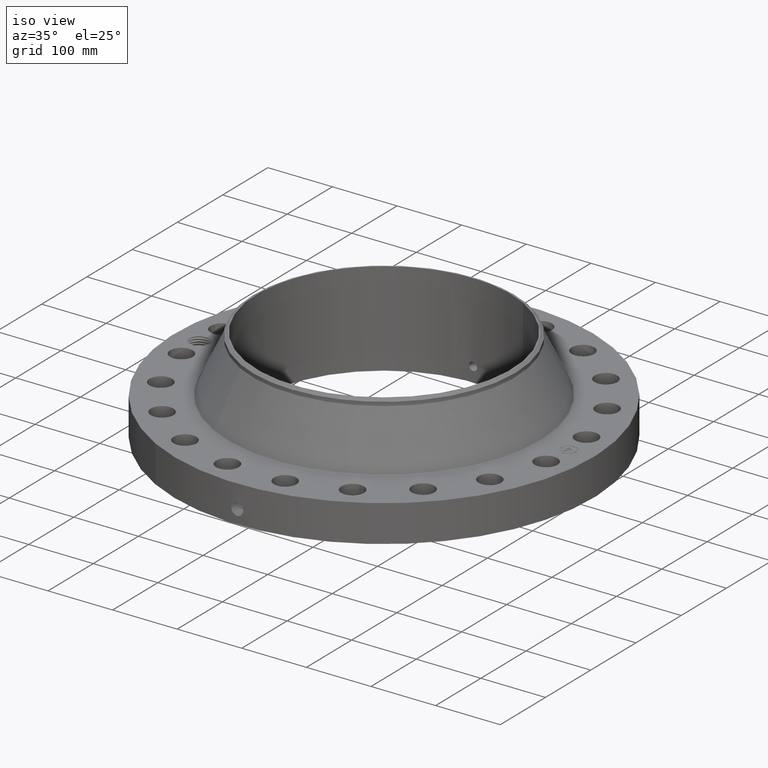
[diagram: clean part render]
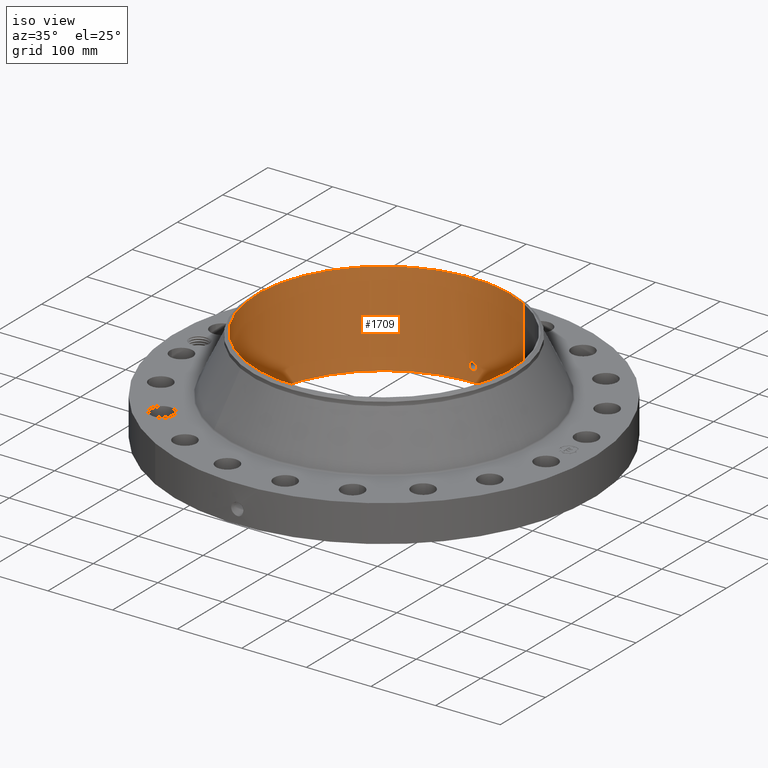
[diagram: tour spotlight — one face highlighted and labeled with its STEP entity id]
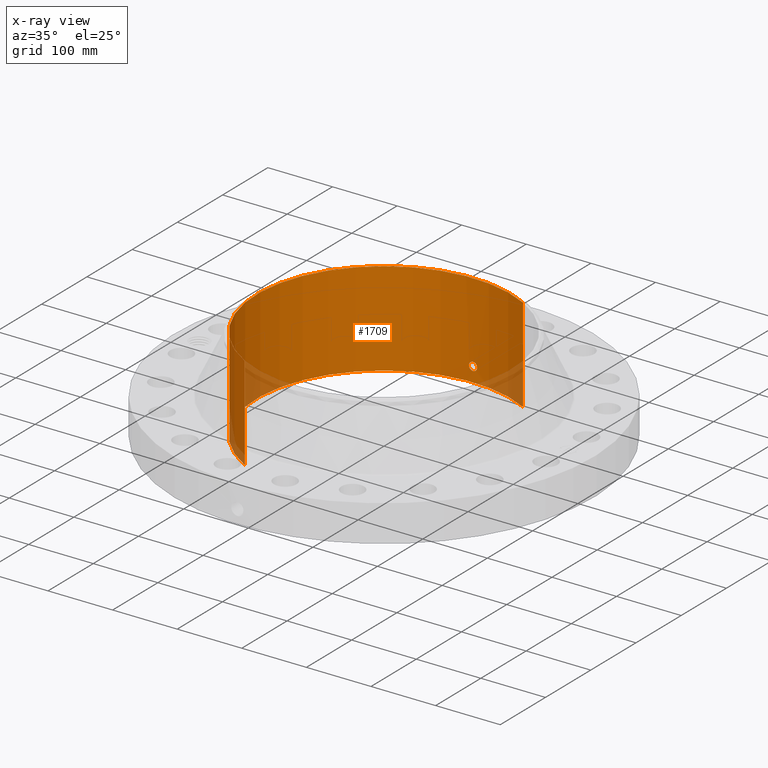
[diagram: x-ray of the same camera — body ghosted, this tour face saturated]
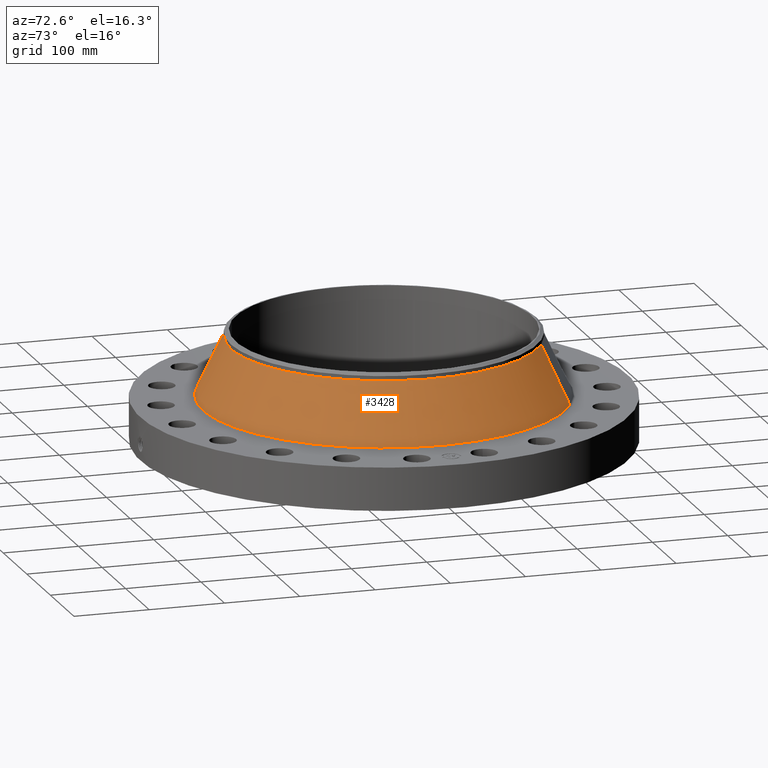
[diagram: tour spotlight — one face highlighted and labeled with its STEP entity id]
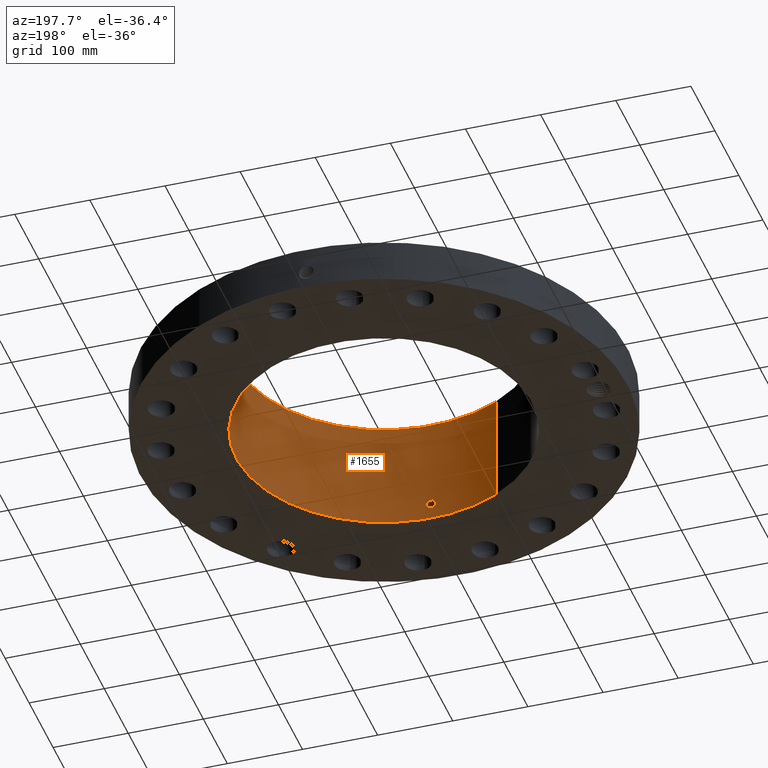
[diagram: tour spotlight — one face highlighted and labeled with its STEP entity id]
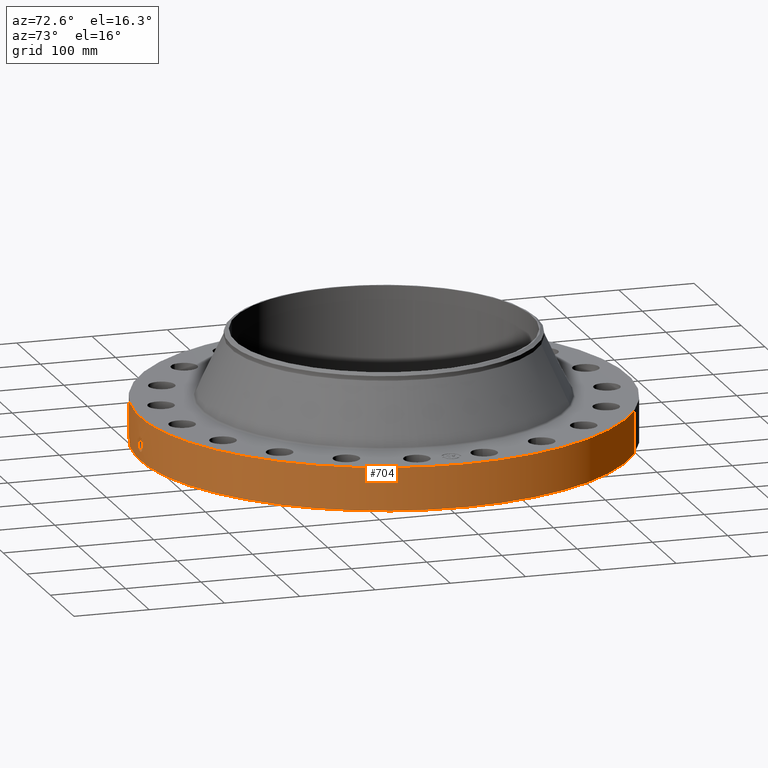
[diagram: tour spotlight — one face highlighted and labeled with its STEP entity id]
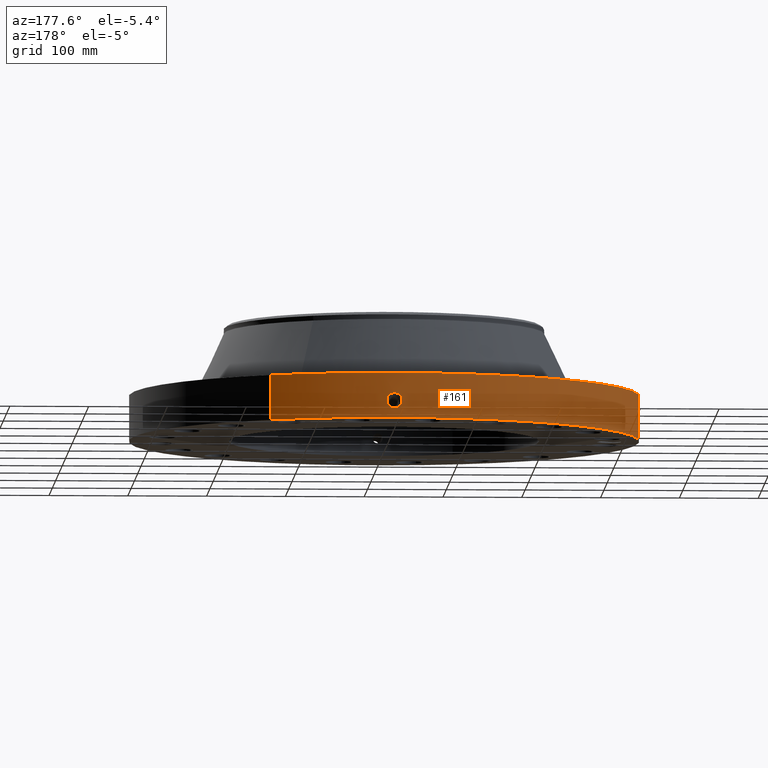
[diagram: tour spotlight — one face highlighted and labeled with its STEP entity id]
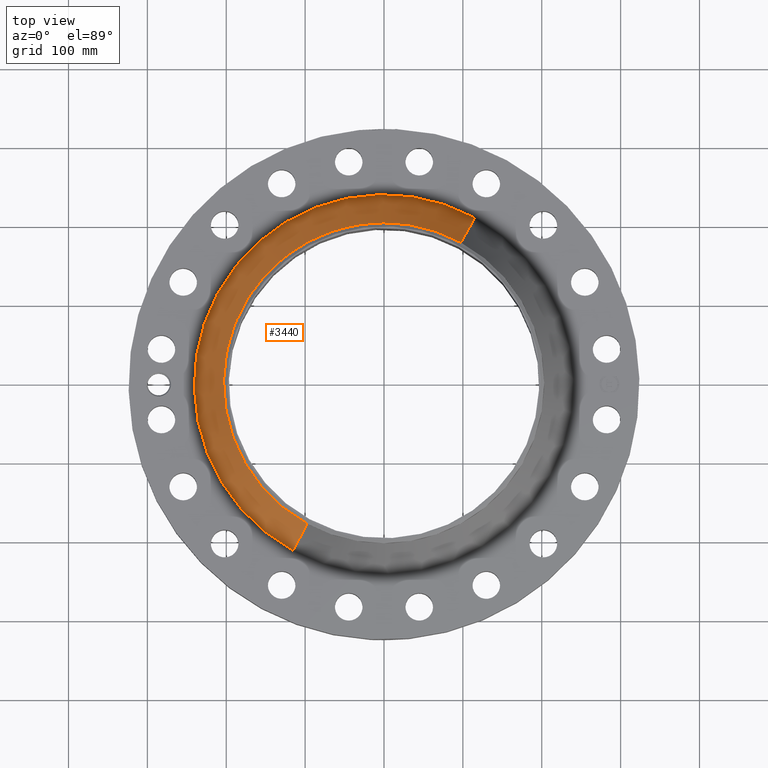
[diagram: tour spotlight — one face highlighted and labeled with its STEP entity id]
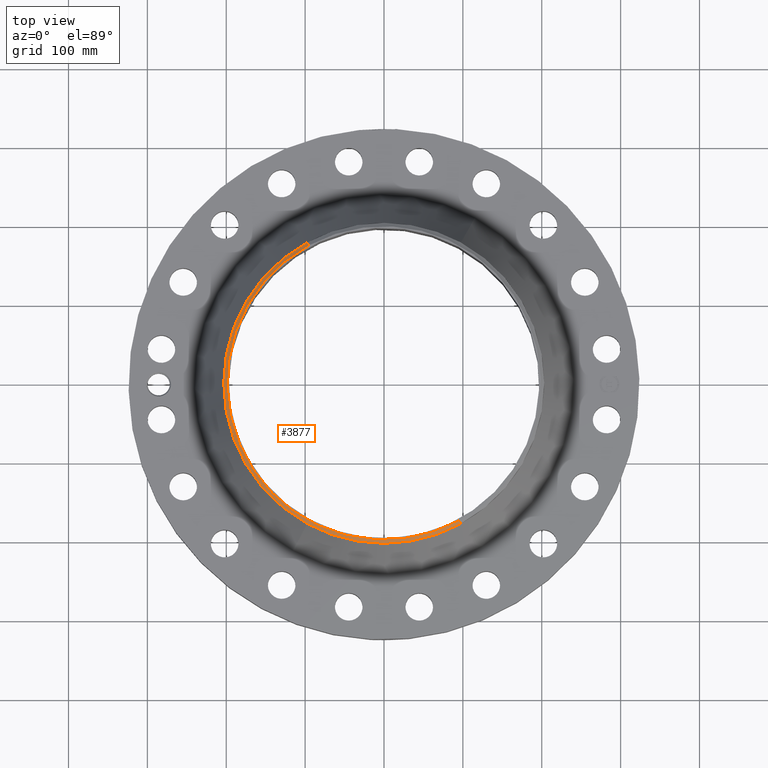
[diagram: tour spotlight — one face highlighted and labeled with its STEP entity id]
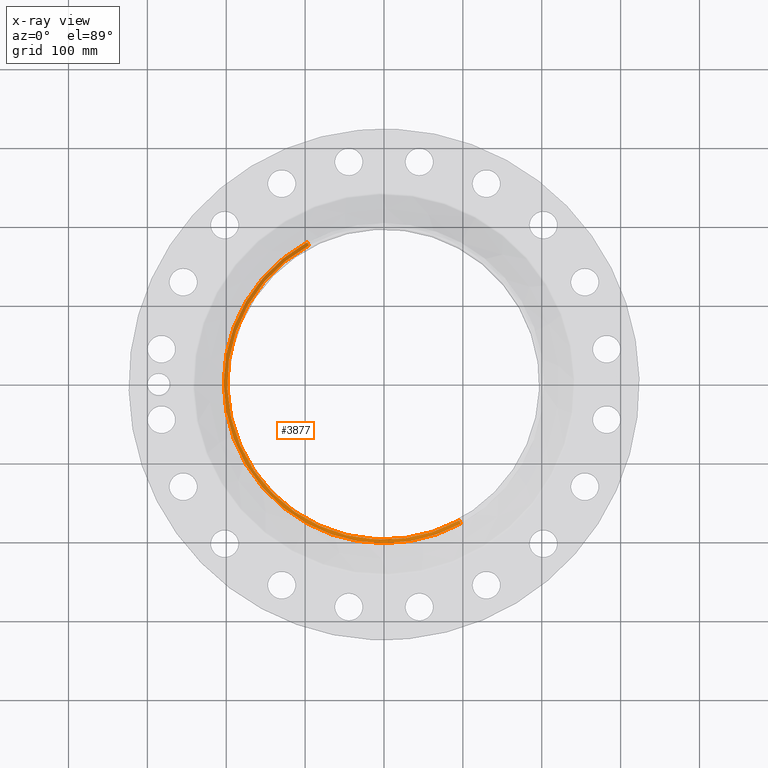
[diagram: x-ray of the same camera — body ghosted, this tour face saturated]
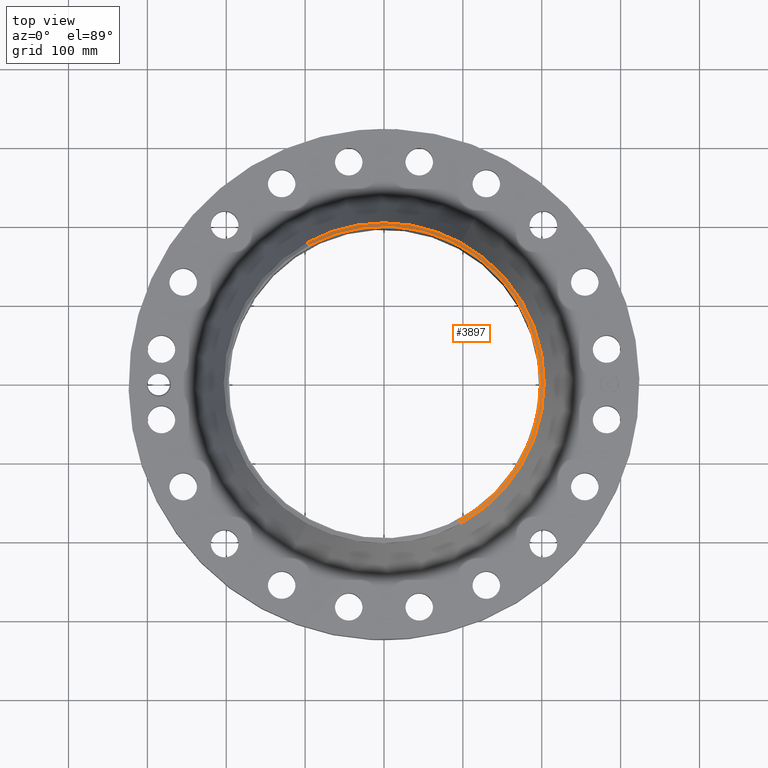
[diagram: tour spotlight — one face highlighted and labeled with its STEP entity id]
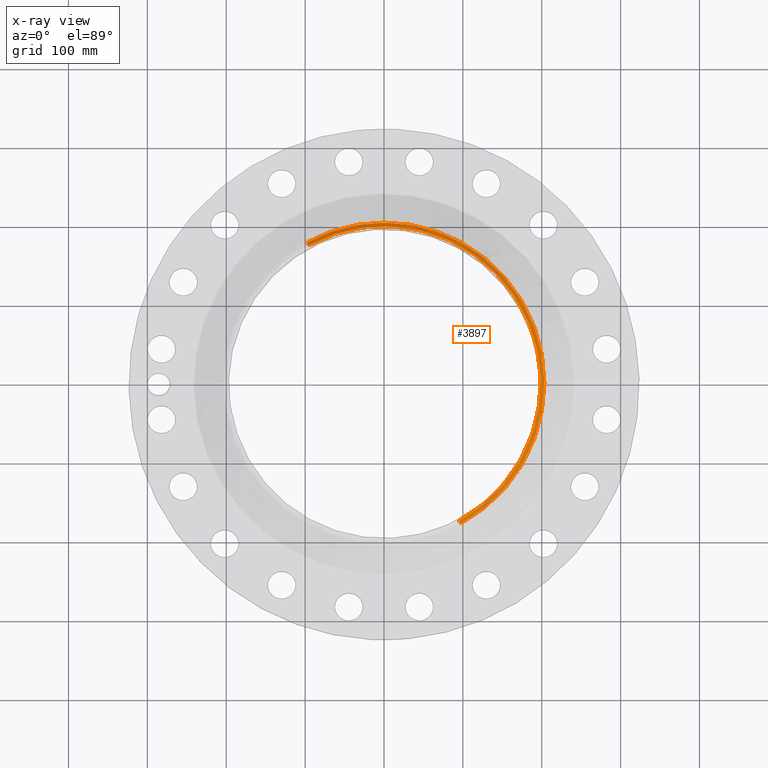
[diagram: x-ray of the same camera — body ghosted, this tour face saturated]
A machine part: a face-by-face anatomy tour. The part has 796 B-rep faces; the first image is the clean iso view, then the 8 largest visible faces are spotlighted one at a time (largest first), each with its STEP entity span.

Face 1 — iso view, entity #1709. An x-ray twin of the same camera follows (body ghosted, this face saturated) — the face is partly hidden behind the body. In plain terms, the highlighted cylindrical surface (partial cylindrical patch) has radius 196.85 mm, axis along (0, 0, -1).
Definition (entity closure, byte-faithful):
#256=AXIS2_PLACEMENT_3D('Circle Axis2P3D',#254,#255,$) ;
#1586=AXIS2_PLACEMENT_3D('Cylinder Axis2P3D',#1583,#1584,#1585) ;
#1658=AXIS2_PLACEMENT_3D('Circle Axis2P3D',#1656,#1657,$) ;
#249=CARTESIAN_POINT('Vertex',(3.7155479242,6.80126485468,0.0600000000002)) ;
#251=CARTESIAN_POINT('Vertex',(-3.7155479242,-6.80126485468,0.0600000000002)) ;
#254=CARTESIAN_POINT('Axis2P3D Location',(0.,0.,0.0600000000002)) ;
#1583=CARTESIAN_POINT('Axis2P3D Location',(0.,0.,2.93500000001)) ;
#1592=CARTESIAN_POINT('Vertex',(3.7155479242,6.80126485468,5.81000000002)) ;
#1594=CARTESIAN_POINT('Vertex',(-3.7155479242,-6.80126485468,5.81000000002)) ;
#1597=CARTESIAN_POINT('Line Origine',(3.7155479242,6.80126485468,2.93500000001)) ;
#1602=CARTESIAN_POINT('Line Origine',(-3.7155479242,-6.80126485468,2.93500000001)) ;
#1656=CARTESIAN_POINT('Axis2P3D Location',(0.,0.,5.81000000002)) ;
#1668=CARTESIAN_POINT('Control Point',(0.219395640473,7.7468939294,1.05985638466)) ;
#1669=CARTESIAN_POINT('Control Point',(0.194443307729,7.74760059108,1.10553132337)) ;
#1670=CARTESIAN_POINT('Control Point',(0.157606486332,7.74854328375,1.14470999864)) ;
#1671=CARTESIAN_POINT('Control Point',(0.111111144198,7.74946004048,1.17324177468)) ;
#1672=CARTESIAN_POINT('Control Point',(0.0336773044383,7.75018946273,1.19588200946)) ;
#1673=CARTESIAN_POINT('Control Point',(-0.0446667861862,7.74993744558,1.18805696026)) ;
#1674=CARTESIAN_POINT('Control Point',(-0.0702953327521,7.74974179968,1.18204511052)) ;
#1675=CARTESIAN_POINT('Control Point',(-0.143949962811,7.74887718675,1.15421582951)) ;
#1676=CARTESIAN_POINT('Control Point',(-0.203236546486,7.7474657996,1.0995061559)) ;
#1677=CARTESIAN_POINT('Control Point',(-0.23220351652,7.74653996778,1.05327055992)) ;
#1678=CARTESIAN_POINT('Control Point',(-0.255839464152,7.7457787164,0.975122432698)) ;
#1679=CARTESIAN_POINT('Control Point',(-0.248284634884,7.74602183676,0.895754343681)) ;
#1680=CARTESIAN_POINT('Control Point',(-0.242050814224,7.74622536427,0.869188883833)) ;
#1681=CARTESIAN_POINT('Control Point',(-0.232316614703,7.7465280014,0.843795300033)) ;
#1682=CARTESIAN_POINT('Control Point',(-0.219395640473,7.7468939294,0.820143615352)) ;
#1683=CARTESIAN_POINT('Vertex',(0.219395640473,7.7468939294,1.05985638466)) ;
#1685=CARTESIAN_POINT('Vertex',(-0.219395640473,7.7468939294,0.820143615352)) ;
#1689=CARTESIAN_POINT('Control Point',(-0.219395640473,7.7468939294,0.820143615352)) ;
#1690=CARTESIAN_POINT('Control Point',(-0.19444330773,7.74760059108,0.774468676637)) ;
#1691=CARTESIAN_POINT('Control Point',(-0.157606486333,7.74854328375,0.735290001369)) ;
#1692=CARTESIAN_POINT('Control Point',(-0.111111144198,7.74946004048,0.706758225326)) ;
#1693=CARTESIAN_POINT('Control Point',(-0.0336773044331,7.75018946273,0.684117990545)) ;
#1694=CARTESIAN_POINT('Control Point',(0.0446667861964,7.74993744558,0.691943039751)) ;
#1695=CARTESIAN_POINT('Control Point',(0.0702953327383,7.74974179968,0.69795488948)) ;
#1696=CARTESIAN_POINT('Control Point',(0.143949962684,7.74887718675,0.725784170446)) ;
#1697=CARTESIAN_POINT('Control Point',(0.203236546291,7.74746579961,0.780493843929)) ;
#1698=CARTESIAN_POINT('Control Point',(0.232203516596,7.74653996778,0.82672944034)) ;
#1699=CARTESIAN_POINT('Control Point',(0.25583946415,7.7457787164,0.904877567467)) ;
#1700=CARTESIAN_POINT('Control Point',(0.248284634878,7.74602183676,0.98424565639)) ;
#1701=CARTESIAN_POINT('Control Point',(0.242050814248,7.74622536427,1.01081111611)) ;
#1702=CARTESIAN_POINT('Control Point',(0.232316614719,7.7465280014,1.03620469995)) ;
#1703=CARTESIAN_POINT('Control Point',(0.219395640473,7.7468939294,1.05985638466)) ;
#255=DIRECTION('Axis2P3D Direction',(0.,0.,-0.0393700787402)) ;
#1584=DIRECTION('Axis2P3D Direction',(0.,0.,-0.0393700787402)) ;
#1585=DIRECTION('Axis2P3D XDirection',(-0.0188750212049,-0.0345504945626,0.)) ;
#1598=DIRECTION('Vector Direction',(0.,0.,-0.0393700787402)) ;
#1603=DIRECTION('Vector Direction',(0.,0.,-0.0393700787402)) ;
#1657=DIRECTION('Axis2P3D Direction',(0.,0.,-0.0393700787402)) ;
#1599=VECTOR('Line Direction',#1598,0.0393700787402) ;
#1604=VECTOR('Line Direction',#1603,0.0393700787402) ;
#1662=ORIENTED_EDGE('',*,*,#1660,.F.) ;
#1663=ORIENTED_EDGE('',*,*,#1606,.T.) ;
#1664=ORIENTED_EDGE('',*,*,#258,.T.) ;
#1665=ORIENTED_EDGE('',*,*,#1601,.F.) ;
#1706=ORIENTED_EDGE('',*,*,#1687,.F.) ;
#1707=ORIENTED_EDGE('',*,*,#1704,.F.) ;
#1708=FACE_BOUND('',#1705,.T.) ;
#1709=ADVANCED_FACE('PartBody',(#1666,#1708),#1587,.F.) ;
#1667=B_SPLINE_CURVE_WITH_KNOTS('',5,(#1668,#1669,#1670,#1671,#1672,#1673,#1674,#1675,#1676,#1677,#1678,#1679,#1680,#1681,#1682),.UNSPECIFIED.,.F.,.U.,(6,3,3,3,6),(0.,9.34864642308,14.022757208,23.3727863649,28.2137613853),.UNSPECIFIED.) ;
#1688=B_SPLINE_CURVE_WITH_KNOTS('',5,(#1689,#1690,#1691,#1692,#1693,#1694,#1695,#1696,#1697,#1698,#1699,#1700,#1701,#1702,#1703),.UNSPECIFIED.,.F.,.U.,(6,3,3,3,6),(0.,9.34864642283,14.0227572088,23.3727863429,28.2137613691),.UNSPECIFIED.) ;
#257=CIRCLE('generated circle',#256,7.75000000003) ;
#1659=CIRCLE('generated circle',#1658,7.75000000003) ;
#1587=CYLINDRICAL_SURFACE('generated cylinder',#1586,7.75000000003) ;
#258=EDGE_CURVE('',#252,#250,#257,.T.) ;
#1601=EDGE_CURVE('',#1593,#250,#1600,.T.) ;
#1606=EDGE_CURVE('',#1595,#252,#1605,.T.) ;
#1660=EDGE_CURVE('',#1595,#1593,#1659,.T.) ;
#1687=EDGE_CURVE('',#1684,#1686,#1667,.T.) ;
#1704=EDGE_CURVE('',#1686,#1684,#1688,.T.) ;
#1661=EDGE_LOOP('',(#1662,#1663,#1664,#1665)) ;
#1705=EDGE_LOOP('',(#1706,#1707)) ;
#1666=FACE_OUTER_BOUND('',#1661,.T.) ;
#1600=LINE('Line',#1597,#1599) ;
#1605=LINE('Line',#1602,#1604) ;
#250=VERTEX_POINT('',#249) ;
#252=VERTEX_POINT('',#251) ;
#1593=VERTEX_POINT('',#1592) ;
#1595=VERTEX_POINT('',#1594) ;
#1684=VERTEX_POINT('',#1683) ;
#1686=VERTEX_POINT('',#1685) ;

Face 2 — auxiliary view, entity #3428. In plain terms, the highlighted conical surface has half-angle 25.588 deg.
Definition (entity closure, byte-faithful):
#2667=AXIS2_PLACEMENT_3D('Circle Axis2P3D',#2665,#2666,$) ;
#3401=AXIS2_PLACEMENT_3D('Cone Axis2P3D',#3398,#3399,#3400) ;
#3412=AXIS2_PLACEMENT_3D('Circle Axis2P3D',#3410,#3411,$) ;
#2662=CARTESIAN_POINT('Vertex',(4.53889157544,8.30838529902,2.3781715998)) ;
#2665=CARTESIAN_POINT('Axis2P3D Location',(0.,0.,2.3781715998)) ;
#2669=CARTESIAN_POINT('Vertex',(-4.53889157544,-8.30838529902,2.3781715998)) ;
#3398=CARTESIAN_POINT('Axis2P3D Location',(0.,0.,5.44236722846)) ;
#3403=CARTESIAN_POINT('Line Origine',(4.18714794214,7.66452289709,3.91026941413)) ;
#3407=CARTESIAN_POINT('Vertex',(3.83540430885,7.02066049515,5.44236722846)) ;
#3410=CARTESIAN_POINT('Axis2P3D Location',(0.,0.,5.44236722846)) ;
#3414=CARTESIAN_POINT('Vertex',(-3.83540430885,-7.02066049515,5.44236722846)) ;
#3417=CARTESIAN_POINT('Line Origine',(-4.18714794214,-7.66452289709,3.91026941413)) ;
#2666=DIRECTION('Axis2P3D Direction',(0.,0.,-0.0393700787402)) ;
#3399=DIRECTION('Axis2P3D Direction',(0.,0.,-0.0393700787402)) ;
#3400=DIRECTION('Axis2P3D XDirection',(-0.0188750212049,-0.0345504945626,0.)) ;
#3404=DIRECTION('Vector Direction',(0.00815218460783,0.0149224738298,-0.0355086575489)) ;
#3411=DIRECTION('Axis2P3D Direction',(0.,0.,-0.0393700787402)) ;
#3418=DIRECTION('Vector Direction',(-0.00815218460783,-0.0149224738298,-0.0355086575489)) ;
#3405=VECTOR('Line Direction',#3404,0.0393700787402) ;
#3419=VECTOR('Line Direction',#3418,0.0393700787402) ;
#3423=ORIENTED_EDGE('',*,*,#2671,.F.) ;
#3424=ORIENTED_EDGE('',*,*,#3409,.T.) ;
#3425=ORIENTED_EDGE('',*,*,#3416,.T.) ;
#3426=ORIENTED_EDGE('',*,*,#3421,.F.) ;
#3428=ADVANCED_FACE('PartBody',(#3427),#3402,.T.) ;
#2668=CIRCLE('generated circle',#2667,9.46735459411) ;
#3413=CIRCLE('generated circle',#3412,8.00000000003) ;
#3402=CONICAL_SURFACE('Cone',#3401,8.00000000003,0.446602028231) ;
#2671=EDGE_CURVE('',#2663,#2670,#2668,.T.) ;
#3409=EDGE_CURVE('',#2663,#3408,#3406,.F.) ;
#3416=EDGE_CURVE('',#3408,#3415,#3413,.T.) ;
#3421=EDGE_CURVE('',#2670,#3415,#3420,.F.) ;
#3422=EDGE_LOOP('',(#3423,#3424,#3425,#3426)) ;
#3427=FACE_OUTER_BOUND('',#3422,.T.) ;
#3406=LINE('Line',#3403,#3405) ;
#3420=LINE('Line',#3417,#3419) ;
#2663=VERTEX_POINT('',#2662) ;
#2670=VERTEX_POINT('',#2669) ;
#3408=VERTEX_POINT('',#3407) ;
#3415=VERTEX_POINT('',#3414) ;

Face 3 — auxiliary view, entity #1655. In plain terms, the highlighted cylindrical surface (partial cylindrical patch) has radius 196.85 mm, axis along (0, 0, -1).
Definition (entity closure, byte-faithful):
#247=AXIS2_PLACEMENT_3D('Circle Axis2P3D',#245,#246,$) ;
#1586=AXIS2_PLACEMENT_3D('Cylinder Axis2P3D',#1583,#1584,#1585) ;
#1590=AXIS2_PLACEMENT_3D('Circle Axis2P3D',#1588,#1589,$) ;
#245=CARTESIAN_POINT('Axis2P3D Location',(0.,0.,0.0600000000002)) ;
#249=CARTESIAN_POINT('Vertex',(3.7155479242,6.80126485468,0.0600000000002)) ;
#251=CARTESIAN_POINT('Vertex',(-3.7155479242,-6.80126485468,0.0600000000002)) ;
#1583=CARTESIAN_POINT('Axis2P3D Location',(0.,0.,2.93500000001)) ;
#1588=CARTESIAN_POINT('Axis2P3D Location',(0.,0.,5.81000000002)) ;
#1592=CARTESIAN_POINT('Vertex',(3.7155479242,6.80126485468,5.81000000002)) ;
#1594=CARTESIAN_POINT('Vertex',(-3.7155479242,-6.80126485468,5.81000000002)) ;
#1597=CARTESIAN_POINT('Line Origine',(3.7155479242,6.80126485468,2.93500000001)) ;
#1602=CARTESIAN_POINT('Line Origine',(-3.7155479242,-6.80126485468,2.93500000001)) ;
#1614=CARTESIAN_POINT('Control Point',(0.219395640473,-7.7468939294,0.820143615352)) ;
#1615=CARTESIAN_POINT('Control Point',(0.194443307725,-7.74760059108,0.774468676627)) ;
#1616=CARTESIAN_POINT('Control Point',(0.157606486318,-7.74854328375,0.735290001353)) ;
#1617=CARTESIAN_POINT('Control Point',(0.111111144336,-7.74946004048,0.706758225388)) ;
#1618=CARTESIAN_POINT('Control Point',(0.0336773045755,-7.75018946273,0.684117990562)) ;
#1619=CARTESIAN_POINT('Control Point',(-0.044666786065,-7.74993744558,0.691943039728)) ;
#1620=CARTESIAN_POINT('Control Point',(-0.0702953326227,-7.74974179968,0.697954889447)) ;
#1621=CARTESIAN_POINT('Control Point',(-0.143949962649,-7.74887718675,0.725784170402)) ;
#1622=CARTESIAN_POINT('Control Point',(-0.203236546324,-7.74746579961,0.780493843931)) ;
#1623=CARTESIAN_POINT('Control Point',(-0.232203516494,-7.74653996778,0.826729440077)) ;
#1624=CARTESIAN_POINT('Control Point',(-0.255839464142,-7.7457787164,0.904877567273)) ;
#1625=CARTESIAN_POINT('Control Point',(-0.248284634899,-7.74602183676,0.984245656284)) ;
#1626=CARTESIAN_POINT('Control Point',(-0.242050814254,-7.74622536426,1.0108111161)) ;
#1627=CARTESIAN_POINT('Control Point',(-0.232316614724,-7.7465280014,1.03620469994)) ;
#1628=CARTESIAN_POINT('Control Point',(-0.219395640473,-7.7468939294,1.05985638466)) ;
#1629=CARTESIAN_POINT('Vertex',(0.219395640473,-7.7468939294,0.820143615352)) ;
#1631=CARTESIAN_POINT('Vertex',(-0.219395640473,-7.7468939294,1.05985638466)) ;
#1635=CARTESIAN_POINT('Control Point',(-0.219395640473,-7.7468939294,1.05985638466)) ;
#1636=CARTESIAN_POINT('Control Point',(-0.194443307736,-7.74760059108,1.10553132336)) ;
#1637=CARTESIAN_POINT('Control Point',(-0.157606486352,-7.74854328375,1.14470999862)) ;
#1638=CARTESIAN_POINT('Control Point',(-0.111111144292,-7.74946004048,1.17324177463)) ;
#1639=CARTESIAN_POINT('Control Point',(-0.0336773045585,-7.75018946273,1.19588200944)) ;
#1640=CARTESIAN_POINT('Control Point',(0.0446667860549,-7.74993744558,1.18805696028)) ;
#1641=CARTESIAN_POINT('Control Point',(0.0702953326259,-7.74974179968,1.18204511056)) ;
#1642=CARTESIAN_POINT('Control Point',(0.143949962635,-7.74887718675,1.15421582961)) ;
#1643=CARTESIAN_POINT('Control Point',(0.203236546301,-7.74746579961,1.0995061561)) ;
#1644=CARTESIAN_POINT('Control Point',(0.232203516501,-7.74653996778,1.05327055991)) ;
#1645=CARTESIAN_POINT('Control Point',(0.25583946414,-7.7457787164,0.975122432723)) ;
#1646=CARTESIAN_POINT('Control Point',(0.248284634899,-7.74602183676,0.895754343726)) ;
#1647=CARTESIAN_POINT('Control Point',(0.242050814255,-7.74622536426,0.869188883913)) ;
#1648=CARTESIAN_POINT('Control Point',(0.232316614724,-7.7465280014,0.84379530007)) ;
#1649=CARTESIAN_POINT('Control Point',(0.219395640473,-7.7468939294,0.820143615352)) ;
#246=DIRECTION('Axis2P3D Direction',(0.,0.,-0.0393700787402)) ;
#1584=DIRECTION('Axis2P3D Direction',(0.,0.,-0.0393700787402)) ;
#1585=DIRECTION('Axis2P3D XDirection',(-0.0188750212049,-0.0345504945626,0.)) ;
#1589=DIRECTION('Axis2P3D Direction',(0.,0.,-0.0393700787402)) ;
#1598=DIRECTION('Vector Direction',(0.,0.,-0.0393700787402)) ;
#1603=DIRECTION('Vector Direction',(0.,0.,-0.0393700787402)) ;
#1599=VECTOR('Line Direction',#1598,0.0393700787402) ;
#1604=VECTOR('Line Direction',#1603,0.0393700787402) ;
#1608=ORIENTED_EDGE('',*,*,#1596,.F.) ;
#1609=ORIENTED_EDGE('',*,*,#1601,.T.) ;
#1610=ORIENTED_EDGE('',*,*,#253,.T.) ;
#1611=ORIENTED_EDGE('',*,*,#1606,.F.) ;
#1652=ORIENTED_EDGE('',*,*,#1633,.F.) ;
#1653=ORIENTED_EDGE('',*,*,#1650,.F.) ;
#1654=FACE_BOUND('',#1651,.T.) ;
#1655=ADVANCED_FACE('PartBody',(#1612,#1654),#1587,.F.) ;
#1613=B_SPLINE_CURVE_WITH_KNOTS('',5,(#1614,#1615,#1616,#1617,#1618,#1619,#1620,#1621,#1622,#1623,#1624,#1625,#1626,#1627,#1628),.UNSPECIFIED.,.F.,.U.,(6,3,3,3,6),(0.,9.34864642473,14.0227572102,23.3727863575,28.2137613855),.UNSPECIFIED.) ;
#1634=B_SPLINE_CURVE_WITH_KNOTS('',5,(#1635,#1636,#1637,#1638,#1639,#1640,#1641,#1642,#1643,#1644,#1645,#1646,#1647,#1648,#1649),.UNSPECIFIED.,.F.,.U.,(6,3,3,3,6),(0.,9.34864642044,14.0227572053,23.3727863501,28.2137613781),.UNSPECIFIED.) ;
#248=CIRCLE('generated circle',#247,7.75000000003) ;
#1591=CIRCLE('generated circle',#1590,7.75000000003) ;
#1587=CYLINDRICAL_SURFACE('generated cylinder',#1586,7.75000000003) ;
#253=EDGE_CURVE('',#250,#252,#248,.T.) ;
#1596=EDGE_CURVE('',#1593,#1595,#1591,.T.) ;
#1601=EDGE_CURVE('',#1593,#250,#1600,.T.) ;
#1606=EDGE_CURVE('',#1595,#252,#1605,.T.) ;
#1633=EDGE_CURVE('',#1630,#1632,#1613,.T.) ;
#1650=EDGE_CURVE('',#1632,#1630,#1634,.T.) ;
#1607=EDGE_LOOP('',(#1608,#1609,#1610,#1611)) ;
#1651=EDGE_LOOP('',(#1652,#1653)) ;
#1612=FACE_OUTER_BOUND('',#1607,.T.) ;
#1600=LINE('Line',#1597,#1599) ;
#1605=LINE('Line',#1602,#1604) ;
#250=VERTEX_POINT('',#249) ;
#252=VERTEX_POINT('',#251) ;
#1593=VERTEX_POINT('',#1592) ;
#1595=VERTEX_POINT('',#1594) ;
#1630=VERTEX_POINT('',#1629) ;
#1632=VERTEX_POINT('',#1631) ;

Face 4 — auxiliary view, entity #704. In plain terms, the highlighted cylindrical surface (partial cylindrical patch) has radius 323.85 mm, axis along (0, 0, -1).
Definition (entity closure, byte-faithful):
#38=AXIS2_PLACEMENT_3D('Cylinder Axis2P3D',#35,#36,#37) ;
#169=AXIS2_PLACEMENT_3D('Circle Axis2P3D',#167,#168,$) ;
#608=AXIS2_PLACEMENT_3D('Circle Axis2P3D',#606,#607,$) ;
#35=CARTESIAN_POINT('Axis2P3D Location',(0.,0.,2.93500000001)) ;
#44=CARTESIAN_POINT('Vertex',(-6.11267561723,-11.1891776641,0.0600000000002)) ;
#46=CARTESIAN_POINT('Vertex',(6.11267561723,11.1891776641,0.0600000000002)) ;
#49=CARTESIAN_POINT('Line Origine',(-6.11267561723,-11.1891776641,1.185)) ;
#53=CARTESIAN_POINT('Vertex',(-6.11267561723,-11.1891776641,2.31000000001)) ;
#60=CARTESIAN_POINT('Vertex',(6.11267561723,11.1891776641,2.31000000001)) ;
#63=CARTESIAN_POINT('Line Origine',(6.11267561723,11.1891776641,1.185)) ;
#167=CARTESIAN_POINT('Axis2P3D Location',(0.,0.,0.0600000000002)) ;
#606=CARTESIAN_POINT('Axis2P3D Location',(0.,0.,2.31000000001)) ;
#618=CARTESIAN_POINT('Control Point',(0.00071622106981,-12.7499999799,1.29411846088)) ;
#619=CARTESIAN_POINT('Control Point',(0.0192056909227,-12.7499989413,1.2940811042)) ;
#620=CARTESIAN_POINT('Control Point',(0.0376918862487,-12.749957358,1.29259135831)) ;
#621=CARTESIAN_POINT('Control Point',(0.0559484449187,-12.7498772454,1.2896676695)) ;
#622=CARTESIAN_POINT('Vertex',(0.000715799889839,-12.74999998,1.29411851024)) ;
#624=CARTESIAN_POINT('Vertex',(0.0559392979336,-12.7498775403,1.28966915328)) ;
#628=CARTESIAN_POINT('Control Point',(0.055939200232,-12.749877286,1.28966859718)) ;
#629=CARTESIAN_POINT('Control Point',(0.0961344830544,-12.749700932,1.28514555478)) ;
#630=CARTESIAN_POINT('Control Point',(0.135662252488,-12.7493301535,1.27330266976)) ;
#631=CARTESIAN_POINT('Control Point',(0.172040385174,-12.7488392455,1.25494868271)) ;
#632=CARTESIAN_POINT('Vertex',(0.172040385174,-12.7488392455,1.25494868271)) ;
#636=CARTESIAN_POINT('Control Point',(0.030810823393,-12.7499627723,0.531174008101)) ;
#637=CARTESIAN_POINT('Control Point',(0.0999546104405,-12.7497956834,0.539935338981)) ;
#638=CARTESIAN_POINT('Control Point',(0.166759413653,-12.7491655306,0.564146634122)) ;
#639=CARTESIAN_POINT('Control Point',(0.226389957238,-12.7481446874,0.60297314641)) ;
#640=CARTESIAN_POINT('Control Point',(0.298759222736,-12.7465677593,0.677010268017)) ;
#641=CARTESIAN_POINT('Control Point',(0.343480925506,-12.7453828601,0.76721571243)) ;
#642=CARTESIAN_POINT('Control Point',(0.354926209673,-12.745063309,0.797930279853)) ;
#643=CARTESIAN_POINT('Control Point',(0.373429793559,-12.7445343214,0.869245218248)) ;
#644=CARTESIAN_POINT('Control Point',(0.375104751114,-12.7444792671,0.942596970011)) ;
#645=CARTESIAN_POINT('Control Point',(0.370729704788,-12.7446111718,0.983234573066)) ;
#646=CARTESIAN_POINT('Control Point',(0.348316563934,-12.745269017,1.07561109916)) ;
#647=CARTESIAN_POINT('Control Point',(0.299005494504,-12.7465456064,1.15696170481)) ;
#648=CARTESIAN_POINT('Control Point',(0.262643848576,-12.7473952472,1.19786903557)) ;
#649=CARTESIAN_POINT('Control Point',(0.219548985996,-12.7481981363,1.23097900005)) ;
#650=CARTESIAN_POINT('Control Point',(0.172040385174,-12.7488392455,1.25494868271)) ;
#651=CARTESIAN_POINT('Vertex',(0.030810823393,-12.7499627723,0.531174008101)) ;
#655=CARTESIAN_POINT('Control Point',(0.030810823393,-12.7499627723,0.531174008101)) ;
#656=CARTESIAN_POINT('Control Point',(0.0205353999324,-12.7499876033,0.530872367684)) ;
#657=CARTESIAN_POINT('Control Point',(0.0102531277833,-12.7500000022,0.530939425497)) ;
#658=CARTESIAN_POINT('Control Point',(-2.72878352125E-006,-12.7500000001,0.531374667805)) ;
#659=CARTESIAN_POINT('Vertex',(-2.72878354373E-006,-12.7500000001,0.531374667805)) ;
#663=CARTESIAN_POINT('Control Point',(-0.192797685506,-12.7485422325,0.587096993604)) ;
#664=CARTESIAN_POINT('Control Point',(-0.149071702676,-12.7492035056,0.561854438156)) ;
#665=CARTESIAN_POINT('Control Point',(-0.101128961582,-12.7497293521,0.54371522409)) ;
#666=CARTESIAN_POINT('Control Point',(-0.0508105141229,-12.7499999892,0.533530865731)) ;
#667=CARTESIAN_POINT('Control Point',(-2.7287835439E-006,-12.7500000001,0.531374667805)) ;
#668=CARTESIAN_POINT('Vertex',(-0.192797685506,-12.7485422325,0.587096993604)) ;
#672=CARTESIAN_POINT('Control Point',(-0.192797685506,-12.7485422325,0.587096993604)) ;
#673=CARTESIAN_POINT('Control Point',(-0.249749528858,-12.7476809432,0.619974701089)) ;
#674=CARTESIAN_POINT('Control Point',(-0.300014616675,-12.7466026779,0.664147622473)) ;
#675=CARTESIAN_POINT('Control Point',(-0.340461272046,-12.7455024632,0.718136963409)) ;
#676=CARTESIAN_POINT('Control Point',(-0.385069983964,-12.7441957942,0.816179520925)) ;
#677=CARTESIAN_POINT('Control Point',(-0.393917718123,-12.7439118253,0.921478504901)) ;
#678=CARTESIAN_POINT('Control Point',(-0.391894356733,-12.743976098,0.961571301736)) ;
#679=CARTESIAN_POINT('Control Point',(-0.377905154886,-12.7444129307,1.03639829568)) ;
#680=CARTESIAN_POINT('Control Point',(-0.345953377831,-12.7453207298,1.10477756521)) ;
#681=CARTESIAN_POINT('Control Point',(-0.326955705254,-12.7458335864,1.13519565167)) ;
#682=CARTESIAN_POINT('Control Point',(-0.265053361042,-12.7473627065,1.212105368)) ;
#683=CARTESIAN_POINT('Control Point',(-0.181582136228,-12.748888363,1.26540228338)) ;
#684=CARTESIAN_POINT('Control Point',(-0.122355690613,-12.749638806,1.28761817336)) ;
#685=CARTESIAN_POINT('Control Point',(-0.0606924292259,-12.7500001232,1.29712989006)) ;
#686=CARTESIAN_POINT('Control Point',(2.58579355355E-005,-12.75,1.29415298431)) ;
#687=CARTESIAN_POINT('Vertex',(2.58579355444E-005,-12.75,1.29415298431)) ;
#691=CARTESIAN_POINT('Control Point',(0.000715799880079,-12.74999998,1.29411851023)) ;
#692=CARTESIAN_POINT('Control Point',(0.000370853334379,-12.7499999993,1.29413606983)) ;
#693=CARTESIAN_POINT('Control Point',(2.58579407768E-005,-12.75,1.2941529843)) ;
#36=DIRECTION('Axis2P3D Direction',(0.,0.,-0.0393700787402)) ;
#37=DIRECTION('Axis2P3D XDirection',(0.0188750212049,0.0345504945626,0.)) ;
#50=DIRECTION('Vector Direction',(0.,0.,-0.0393700787402)) ;
#64=DIRECTION('Vector Direction',(0.,0.,-0.0393700787402)) ;
#168=DIRECTION('Axis2P3D Direction',(0.,0.,-0.0393700787402)) ;
#607=DIRECTION('Axis2P3D Direction',(0.,0.,-0.0393700787402)) ;
#51=VECTOR('Line Direction',#50,0.0393700787402) ;
#65=VECTOR('Line Direction',#64,0.0393700787402) ;
#612=ORIENTED_EDGE('',*,*,#171,.F.) ;
#613=ORIENTED_EDGE('',*,*,#67,.T.) ;
#614=ORIENTED_EDGE('',*,*,#610,.T.) ;
#615=ORIENTED_EDGE('',*,*,#55,.F.) ;
#696=ORIENTED_EDGE('',*,*,#626,.T.) ;
#697=ORIENTED_EDGE('',*,*,#634,.T.) ;
#698=ORIENTED_EDGE('',*,*,#653,.F.) ;
#699=ORIENTED_EDGE('',*,*,#661,.T.) ;
#700=ORIENTED_EDGE('',*,*,#670,.F.) ;
#701=ORIENTED_EDGE('',*,*,#689,.T.) ;
#702=ORIENTED_EDGE('',*,*,#694,.F.) ;
#703=FACE_BOUND('',#695,.T.) ;
#704=ADVANCED_FACE('PartBody',(#616,#703),#39,.T.) ;
#617=B_SPLINE_CURVE_WITH_KNOTS('',3,(#618,#619,#620,#621),.UNSPECIFIED.,.F.,.U.,(4,4),(34.6164487276,36.6676805584),.UNSPECIFIED.) ;
#627=B_SPLINE_CURVE_WITH_KNOTS('',3,(#628,#629,#630,#631),.UNSPECIFIED.,.F.,.U.,(4,4),(0.,4.54498819023),.UNSPECIFIED.) ;
#635=B_SPLINE_CURVE_WITH_KNOTS('',5,(#636,#637,#638,#639,#640,#641,#642,#643,#644,#645,#646,#647,#648,#649,#650),.UNSPECIFIED.,.F.,.U.,(6,3,3,3,6),(0.,12.1125843953,17.9739548008,25.3575269992,35.2501931075),.UNSPECIFIED.) ;
#654=B_SPLINE_CURVE_WITH_KNOTS('',3,(#655,#656,#657,#658),.UNSPECIFIED.,.F.,.U.,(4,4),(0.,1.07185696031),.UNSPECIFIED.) ;
#662=B_SPLINE_CURVE_WITH_KNOTS('',4,(#663,#664,#665,#666,#667),.UNSPECIFIED.,.F.,.U.,(5,5),(0.,7.0800103633),.UNSPECIFIED.) ;
#671=B_SPLINE_CURVE_WITH_KNOTS('',5,(#672,#673,#674,#675,#676,#677,#678,#679,#680,#681,#682,#683,#684,#685,#686),.UNSPECIFIED.,.F.,.U.,(6,3,3,3,6),(0.,11.5268890419,18.5780212202,24.9818144685,36.3313222898),.UNSPECIFIED.) ;
#690=B_SPLINE_CURVE_WITH_KNOTS('',2,(#691,#692,#693),.UNSPECIFIED.,.F.,.U.,(3,3),(1.02805109055,1.05384581088),.UNSPECIFIED.) ;
#170=CIRCLE('generated circle',#169,12.7500000001) ;
#609=CIRCLE('generated circle',#608,12.7500000001) ;
#39=CYLINDRICAL_SURFACE('generated cylinder',#38,12.7500000001) ;
#55=EDGE_CURVE('',#45,#54,#52,.F.) ;
#67=EDGE_CURVE('',#47,#61,#66,.F.) ;
#171=EDGE_CURVE('',#47,#45,#170,.T.) ;
#610=EDGE_CURVE('',#61,#54,#609,.T.) ;
#626=EDGE_CURVE('',#623,#625,#617,.T.) ;
#634=EDGE_CURVE('',#625,#633,#627,.T.) ;
#653=EDGE_CURVE('',#652,#633,#635,.T.) ;
#661=EDGE_CURVE('',#652,#660,#654,.T.) ;
#670=EDGE_CURVE('',#669,#660,#662,.T.) ;
#689=EDGE_CURVE('',#669,#688,#671,.T.) ;
#694=EDGE_CURVE('',#623,#688,#690,.T.) ;
#611=EDGE_LOOP('',(#612,#613,#614,#615)) ;
#695=EDGE_LOOP('',(#696,#697,#698,#699,#700,#701,#702)) ;
#616=FACE_OUTER_BOUND('',#611,.T.) ;
#52=LINE('Line',#49,#51) ;
#66=LINE('Line',#63,#65) ;
#45=VERTEX_POINT('',#44) ;
#47=VERTEX_POINT('',#46) ;
#54=VERTEX_POINT('',#53) ;
#61=VERTEX_POINT('',#60) ;
#623=VERTEX_POINT('',#622) ;
#625=VERTEX_POINT('',#624) ;
#633=VERTEX_POINT('',#632) ;
#652=VERTEX_POINT('',#651) ;
#660=VERTEX_POINT('',#659) ;
#669=VERTEX_POINT('',#668) ;
#688=VERTEX_POINT('',#687) ;

Face 5 — auxiliary view, entity #161. In plain terms, the highlighted cylindrical surface (partial cylindrical patch) has radius 323.85 mm, axis along (0, 0, -1).
Definition (entity closure, byte-faithful):
#38=AXIS2_PLACEMENT_3D('Cylinder Axis2P3D',#35,#36,#37) ;
#42=AXIS2_PLACEMENT_3D('Circle Axis2P3D',#40,#41,$) ;
#58=AXIS2_PLACEMENT_3D('Circle Axis2P3D',#56,#57,$) ;
#35=CARTESIAN_POINT('Axis2P3D Location',(0.,0.,2.93500000001)) ;
#40=CARTESIAN_POINT('Axis2P3D Location',(0.,0.,0.0600000000002)) ;
#44=CARTESIAN_POINT('Vertex',(-6.11267561723,-11.1891776641,0.0600000000002)) ;
#46=CARTESIAN_POINT('Vertex',(6.11267561723,11.1891776641,0.0600000000002)) ;
#49=CARTESIAN_POINT('Line Origine',(-6.11267561723,-11.1891776641,1.185)) ;
#53=CARTESIAN_POINT('Vertex',(-6.11267561723,-11.1891776641,2.31000000001)) ;
#56=CARTESIAN_POINT('Axis2P3D Location',(0.,0.,2.31000000001)) ;
#60=CARTESIAN_POINT('Vertex',(6.11267561723,11.1891776641,2.31000000001)) ;
#63=CARTESIAN_POINT('Line Origine',(6.11267561723,11.1891776641,1.185)) ;
#75=CARTESIAN_POINT('Control Point',(-0.00071622107048,12.7499999799,1.29411846088)) ;
#76=CARTESIAN_POINT('Control Point',(-0.019205690922,12.7499989413,1.2940811042)) ;
#77=CARTESIAN_POINT('Control Point',(-0.037691886248,12.749957358,1.29259135831)) ;
#78=CARTESIAN_POINT('Control Point',(-0.0559484449188,12.7498772454,1.2896676695)) ;
#79=CARTESIAN_POINT('Vertex',(-0.000715799889837,12.74999998,1.29411851024)) ;
#81=CARTESIAN_POINT('Vertex',(-0.0559392979336,12.7498775403,1.28966915328)) ;
#85=CARTESIAN_POINT('Control Point',(-0.055939200232,12.749877286,1.28966859718)) ;
#86=CARTESIAN_POINT('Control Point',(-0.0961344830574,12.749700932,1.28514555477)) ;
#87=CARTESIAN_POINT('Control Point',(-0.135662252485,12.7493301535,1.27330266976)) ;
#88=CARTESIAN_POINT('Control Point',(-0.172040385174,12.7488392455,1.25494868271)) ;
#89=CARTESIAN_POINT('Vertex',(-0.172040385174,12.7488392455,1.25494868271)) ;
#93=CARTESIAN_POINT('Control Point',(-0.030810823393,12.7499627723,0.531174008101)) ;
#94=CARTESIAN_POINT('Control Point',(-0.0999546104623,12.7497956834,0.539935338984)) ;
#95=CARTESIAN_POINT('Control Point',(-0.166759413695,12.7491655306,0.564146634138)) ;
#96=CARTESIAN_POINT('Control Point',(-0.226389957205,12.7481446874,0.602973146377)) ;
#97=CARTESIAN_POINT('Control Point',(-0.298759222726,12.7465677593,0.677010267995)) ;
#98=CARTESIAN_POINT('Control Point',(-0.343480925505,12.7453828601,0.767215712428)) ;
#99=CARTESIAN_POINT('Control Point',(-0.354926209672,12.745063309,0.797930279851)) ;
#100=CARTESIAN_POINT('Control Point',(-0.373429793539,12.7445343214,0.869245218172)) ;
#101=CARTESIAN_POINT('Control Point',(-0.375104751111,12.7444792671,0.942596969858)) ;
#102=CARTESIAN_POINT('Control Point',(-0.370729704753,12.7446111718,0.983234573209)) ;
#103=CARTESIAN_POINT('Control Point',(-0.348316563883,12.745269017,1.07561109927)) ;
#104=CARTESIAN_POINT('Control Point',(-0.299005494446,12.7465456064,1.1569617049)) ;
#105=CARTESIAN_POINT('Control Point',(-0.262643848666,12.7473952472,1.19786903551)) ;
#106=CARTESIAN_POINT('Control Point',(-0.219548986045,12.7481981363,1.23097900002)) ;
#107=CARTESIAN_POINT('Control Point',(-0.172040385174,12.7488392455,1.25494868271)) ;
#108=CARTESIAN_POINT('Vertex',(-0.030810823393,12.7499627723,0.531174008101)) ;
#112=CARTESIAN_POINT('Control Point',(-0.030810823393,12.7499627723,0.531174008101)) ;
#113=CARTESIAN_POINT('Control Point',(-0.0205353999324,12.7499876033,0.530872367684)) ;
#114=CARTESIAN_POINT('Control Point',(-0.0102531277833,12.7500000022,0.530939425497)) ;
#115=CARTESIAN_POINT('Control Point',(2.72878355366E-006,12.7500000001,0.531374667805)) ;
#116=CARTESIAN_POINT('Vertex',(2.72878354201E-006,12.7500000001,0.531374667805)) ;
#120=CARTESIAN_POINT('Control Point',(0.192797685506,12.7485422325,0.587096993604)) ;
#121=CARTESIAN_POINT('Control Point',(0.149071702676,12.7492035056,0.561854438155)) ;
#122=CARTESIAN_POINT('Control Point',(0.101128961582,12.7497293521,0.54371522409)) ;
#123=CARTESIAN_POINT('Control Point',(0.0508105141235,12.7499999892,0.533530865731)) ;
#124=CARTESIAN_POINT('Control Point',(2.72878353102E-006,12.7500000001,0.531374667805)) ;
#125=CARTESIAN_POINT('Vertex',(0.192797685506,12.7485422325,0.587096993604)) ;
#129=CARTESIAN_POINT('Control Point',(0.192797685506,12.7485422325,0.587096993604)) ;
#130=CARTESIAN_POINT('Control Point',(0.249749528927,12.7476809432,0.619974701129)) ;
#131=CARTESIAN_POINT('Control Point',(0.300014616797,12.7466026779,0.66414762258)) ;
#132=CARTESIAN_POINT('Control Point',(0.340461272016,12.7455024632,0.71813696332)) ;
#133=CARTESIAN_POINT('Control Point',(0.38506998399,12.7441957942,0.816179520942)) ;
#134=CARTESIAN_POINT('Control Point',(0.393917718129,12.7439118253,0.921478505033)) ;
#135=CARTESIAN_POINT('Control Point',(0.391894356738,12.743976098,0.96157130174)) ;
#136=CARTESIAN_POINT('Control Point',(0.377905154876,12.7444129307,1.03639829573)) ;
#137=CARTESIAN_POINT('Control Point',(0.345953377784,12.7453207298,1.1047775653)) ;
#138=CARTESIAN_POINT('Control Point',(0.326955705239,12.7458335864,1.1351956517)) ;
#139=CARTESIAN_POINT('Control Point',(0.265053361002,12.7473627065,1.21210536803)) ;
#140=CARTESIAN_POINT('Control Point',(0.181582136165,12.748888363,1.26540228341)) ;
#141=CARTESIAN_POINT('Control Point',(0.122355690618,12.749638806,1.28761817335)) ;
#142=CARTESIAN_POINT('Control Point',(0.0606924292284,12.7500001232,1.29712989006)) ;
#143=CARTESIAN_POINT('Control Point',(-2.5857935537E-005,12.75,1.29415298431)) ;
#144=CARTESIAN_POINT('Vertex',(-2.5857935546E-005,12.75,1.29415298431)) ;
#148=CARTESIAN_POINT('Control Point',(-0.000715799880076,12.74999998,1.29411851023)) ;
#149=CARTESIAN_POINT('Control Point',(-0.000370853334392,12.7499999993,1.29413606983)) ;
#150=CARTESIAN_POINT('Control Point',(-2.58579408056E-005,12.75,1.2941529843)) ;
#36=DIRECTION('Axis2P3D Direction',(0.,0.,-0.0393700787402)) ;
#37=DIRECTION('Axis2P3D XDirection',(0.0188750212049,0.0345504945626,0.)) ;
#41=DIRECTION('Axis2P3D Direction',(0.,0.,-0.0393700787402)) ;
#50=DIRECTION('Vector Direction',(0.,0.,-0.0393700787402)) ;
#57=DIRECTION('Axis2P3D Direction',(0.,0.,-0.0393700787402)) ;
#64=DIRECTION('Vector Direction',(0.,0.,-0.0393700787402)) ;
#51=VECTOR('Line Direction',#50,0.0393700787402) ;
#65=VECTOR('Line Direction',#64,0.0393700787402) ;
#69=ORIENTED_EDGE('',*,*,#48,.F.) ;
#70=ORIENTED_EDGE('',*,*,#55,.T.) ;
#71=ORIENTED_EDGE('',*,*,#62,.T.) ;
#72=ORIENTED_EDGE('',*,*,#67,.F.) ;
#153=ORIENTED_EDGE('',*,*,#83,.T.) ;
#154=ORIENTED_EDGE('',*,*,#91,.T.) ;
#155=ORIENTED_EDGE('',*,*,#110,.F.) ;
#156=ORIENTED_EDGE('',*,*,#118,.T.) ;
#157=ORIENTED_EDGE('',*,*,#127,.F.) ;
#158=ORIENTED_EDGE('',*,*,#146,.T.) ;
#159=ORIENTED_EDGE('',*,*,#151,.F.) ;
#160=FACE_BOUND('',#152,.T.) ;
#161=ADVANCED_FACE('PartBody',(#73,#160),#39,.T.) ;
#74=B_SPLINE_CURVE_WITH_KNOTS('',3,(#75,#76,#77,#78),.UNSPECIFIED.,.F.,.U.,(4,4),(34.616448747,36.6676805779),.UNSPECIFIED.) ;
#84=B_SPLINE_CURVE_WITH_KNOTS('',3,(#85,#86,#87,#88),.UNSPECIFIED.,.F.,.U.,(4,4),(0.,4.54498819058),.UNSPECIFIED.) ;
#92=B_SPLINE_CURVE_WITH_KNOTS('',5,(#93,#94,#95,#96,#97,#98,#99,#100,#101,#102,#103,#104,#105,#106,#107),.UNSPECIFIED.,.F.,.U.,(6,3,3,3,6),(0.,12.1125843991,17.9739548046,25.3575269895,35.250193108),.UNSPECIFIED.) ;
#111=B_SPLINE_CURVE_WITH_KNOTS('',3,(#112,#113,#114,#115),.UNSPECIFIED.,.F.,.U.,(4,4),(0.,1.07185696031),.UNSPECIFIED.) ;
#119=B_SPLINE_CURVE_WITH_KNOTS('',4,(#120,#121,#122,#123,#124),.UNSPECIFIED.,.F.,.U.,(5,5),(0.,7.08001036339),.UNSPECIFIED.) ;
#128=B_SPLINE_CURVE_WITH_KNOTS('',5,(#129,#130,#131,#132,#133,#134,#135,#136,#137,#138,#139,#140,#141,#142,#143),.UNSPECIFIED.,.F.,.U.,(6,3,3,3,6),(0.,11.5268890559,18.5780212398,24.9818144913,36.3313223131),.UNSPECIFIED.) ;
#147=B_SPLINE_CURVE_WITH_KNOTS('',2,(#148,#149,#150),.UNSPECIFIED.,.F.,.U.,(3,3),(1.02805109055,1.05384581088),.UNSPECIFIED.) ;
#43=CIRCLE('generated circle',#42,12.7500000001) ;
#59=CIRCLE('generated circle',#58,12.7500000001) ;
#39=CYLINDRICAL_SURFACE('generated cylinder',#38,12.7500000001) ;
#48=EDGE_CURVE('',#45,#47,#43,.T.) ;
#55=EDGE_CURVE('',#45,#54,#52,.F.) ;
#62=EDGE_CURVE('',#54,#61,#59,.T.) ;
#67=EDGE_CURVE('',#47,#61,#66,.F.) ;
#83=EDGE_CURVE('',#80,#82,#74,.T.) ;
#91=EDGE_CURVE('',#82,#90,#84,.T.) ;
#110=EDGE_CURVE('',#109,#90,#92,.T.) ;
#118=EDGE_CURVE('',#109,#117,#111,.T.) ;
#127=EDGE_CURVE('',#126,#117,#119,.T.) ;
#146=EDGE_CURVE('',#126,#145,#128,.T.) ;
#151=EDGE_CURVE('',#80,#145,#147,.T.) ;
#68=EDGE_LOOP('',(#69,#70,#71,#72)) ;
#152=EDGE_LOOP('',(#153,#154,#155,#156,#157,#158,#159)) ;
#73=FACE_OUTER_BOUND('',#68,.T.) ;
#52=LINE('Line',#49,#51) ;
#66=LINE('Line',#63,#65) ;
#45=VERTEX_POINT('',#44) ;
#47=VERTEX_POINT('',#46) ;
#54=VERTEX_POINT('',#53) ;
#61=VERTEX_POINT('',#60) ;
#80=VERTEX_POINT('',#79) ;
#82=VERTEX_POINT('',#81) ;
#90=VERTEX_POINT('',#89) ;
#109=VERTEX_POINT('',#108) ;
#117=VERTEX_POINT('',#116) ;
#126=VERTEX_POINT('',#125) ;
#145=VERTEX_POINT('',#144) ;

Face 6 — top view, entity #3440. In plain terms, the highlighted conical surface has half-angle 25.588 deg.
Definition (entity closure, byte-faithful):
#2686=AXIS2_PLACEMENT_3D('Circle Axis2P3D',#2684,#2685,$) ;
#3401=AXIS2_PLACEMENT_3D('Cone Axis2P3D',#3398,#3399,#3400) ;
#3431=AXIS2_PLACEMENT_3D('Circle Axis2P3D',#3429,#3430,$) ;
#2662=CARTESIAN_POINT('Vertex',(4.53889157544,8.30838529902,2.3781715998)) ;
#2669=CARTESIAN_POINT('Vertex',(-4.53889157544,-8.30838529902,2.3781715998)) ;
#2684=CARTESIAN_POINT('Axis2P3D Location',(0.,0.,2.3781715998)) ;
#3398=CARTESIAN_POINT('Axis2P3D Location',(0.,0.,5.44236722846)) ;
#3403=CARTESIAN_POINT('Line Origine',(4.18714794214,7.66452289709,3.91026941413)) ;
#3407=CARTESIAN_POINT('Vertex',(3.83540430885,7.02066049515,5.44236722846)) ;
#3414=CARTESIAN_POINT('Vertex',(-3.83540430885,-7.02066049515,5.44236722846)) ;
#3417=CARTESIAN_POINT('Line Origine',(-4.18714794214,-7.66452289709,3.91026941413)) ;
#3429=CARTESIAN_POINT('Axis2P3D Location',(0.,0.,5.44236722846)) ;
#2685=DIRECTION('Axis2P3D Direction',(0.,0.,-0.0393700787402)) ;
#3399=DIRECTION('Axis2P3D Direction',(0.,0.,-0.0393700787402)) ;
#3400=DIRECTION('Axis2P3D XDirection',(-0.0188750212049,-0.0345504945626,0.)) ;
#3404=DIRECTION('Vector Direction',(0.00815218460783,0.0149224738298,-0.0355086575489)) ;
#3418=DIRECTION('Vector Direction',(-0.00815218460783,-0.0149224738298,-0.0355086575489)) ;
#3430=DIRECTION('Axis2P3D Direction',(0.,0.,-0.0393700787402)) ;
#3405=VECTOR('Line Direction',#3404,0.0393700787402) ;
#3419=VECTOR('Line Direction',#3418,0.0393700787402) ;
#3435=ORIENTED_EDGE('',*,*,#2688,.F.) ;
#3436=ORIENTED_EDGE('',*,*,#3421,.T.) ;
#3437=ORIENTED_EDGE('',*,*,#3433,.T.) ;
#3438=ORIENTED_EDGE('',*,*,#3409,.F.) ;
#3440=ADVANCED_FACE('PartBody',(#3439),#3402,.T.) ;
#2687=CIRCLE('generated circle',#2686,9.46735459411) ;
#3432=CIRCLE('generated circle',#3431,8.00000000003) ;
#3402=CONICAL_SURFACE('Cone',#3401,8.00000000003,0.446602028231) ;
#2688=EDGE_CURVE('',#2670,#2663,#2687,.T.) ;
#3409=EDGE_CURVE('',#2663,#3408,#3406,.F.) ;
#3421=EDGE_CURVE('',#2670,#3415,#3420,.F.) ;
#3433=EDGE_CURVE('',#3415,#3408,#3432,.T.) ;
#3434=EDGE_LOOP('',(#3435,#3436,#3437,#3438)) ;
#3439=FACE_OUTER_BOUND('',#3434,.T.) ;
#3406=LINE('Line',#3403,#3405) ;
#3420=LINE('Line',#3417,#3419) ;
#2663=VERTEX_POINT('',#2662) ;
#2670=VERTEX_POINT('',#2669) ;
#3408=VERTEX_POINT('',#3407) ;
#3415=VERTEX_POINT('',#3414) ;

Face 7 — top view, entity #3877. An x-ray twin of the same camera follows (body ghosted, this face saturated) — the face is partly hidden behind the body. In plain terms, the highlighted conical surface has half-angle 52.5 deg.
Definition (entity closure, byte-faithful):
#3043=AXIS2_PLACEMENT_3D('Circle Axis2P3D',#3041,#3042,$) ;
#3842=AXIS2_PLACEMENT_3D('Cone Axis2P3D',#3839,#3840,#3841) ;
#3860=AXIS2_PLACEMENT_3D('Circle Axis2P3D',#3858,#3859,$) ;
#3867=AXIS2_PLACEMENT_3D('Circle Axis2P3D',#3865,#3866,$) ;
#3036=CARTESIAN_POINT('Vertex',(3.75329796661,-6.8703658438,5.81000000002)) ;
#3038=CARTESIAN_POINT('Vertex',(-3.75329796661,6.8703658438,5.81000000002)) ;
#3041=CARTESIAN_POINT('Axis2P3D Location',(0.,0.,5.81000000002)) ;
#3839=CARTESIAN_POINT('Axis2P3D Location',(0.,0.,5.81000000002)) ;
#3844=CARTESIAN_POINT('Line Origine',(3.79435113773,-6.94551316948,5.74429385046)) ;
#3848=CARTESIAN_POINT('Vertex',(3.83540430885,-7.02066049515,5.6785877009)) ;
#3851=CARTESIAN_POINT('Line Origine',(-3.79435113773,6.94551316948,5.74429385046)) ;
#3855=CARTESIAN_POINT('Vertex',(-3.83540430885,7.02066049515,5.6785877009)) ;
#3858=CARTESIAN_POINT('Axis2P3D Location',(0.,0.,5.6785877009)) ;
#3862=CARTESIAN_POINT('Vertex',(-3.83540430885,-7.02066049515,5.6785877009)) ;
#3865=CARTESIAN_POINT('Axis2P3D Location',(0.,0.,5.6785877009)) ;
#3042=DIRECTION('Axis2P3D Direction',(0.,0.,-0.0393700787402)) ;
#3840=DIRECTION('Axis2P3D Direction',(-0.,-0.,-0.0393700787402)) ;
#3841=DIRECTION('Axis2P3D XDirection',(-0.0188750212049,0.0345504945626,0.)) ;
#3845=DIRECTION('Vector Direction',(0.014974561121,-0.02741075027,-0.023966985394)) ;
#3852=DIRECTION('Vector Direction',(-0.014974561121,0.02741075027,-0.023966985394)) ;
#3859=DIRECTION('Axis2P3D Direction',(0.,0.,-0.0393700787402)) ;
#3866=DIRECTION('Axis2P3D Direction',(0.,0.,-0.0393700787402)) ;
#3846=VECTOR('Line Direction',#3845,0.0393700787402) ;
#3853=VECTOR('Line Direction',#3852,0.0393700787402) ;
#3871=ORIENTED_EDGE('',*,*,#3850,.F.) ;
#3872=ORIENTED_EDGE('',*,*,#3045,.F.) ;
#3873=ORIENTED_EDGE('',*,*,#3857,.T.) ;
#3874=ORIENTED_EDGE('',*,*,#3864,.T.) ;
#3875=ORIENTED_EDGE('',*,*,#3869,.F.) ;
#3877=ADVANCED_FACE('PartBody',(#3876),#3843,.T.) ;
#3044=CIRCLE('generated circle',#3043,7.82874015751) ;
#3861=CIRCLE('generated circle',#3860,8.00000000003) ;
#3868=CIRCLE('generated circle',#3867,8.00000000003) ;
#3843=CONICAL_SURFACE('Cone',#3842,7.82874015751,0.916297857297) ;
#3045=EDGE_CURVE('',#3039,#3037,#3044,.F.) ;
#3850=EDGE_CURVE('',#3037,#3849,#3847,.T.) ;
#3857=EDGE_CURVE('',#3039,#3856,#3854,.T.) ;
#3864=EDGE_CURVE('',#3856,#3863,#3861,.F.) ;
#3869=EDGE_CURVE('',#3849,#3863,#3868,.T.) ;
#3870=EDGE_LOOP('',(#3871,#3872,#3873,#3874,#3875)) ;
#3876=FACE_OUTER_BOUND('',#3870,.T.) ;
#3847=LINE('Line',#3844,#3846) ;
#3854=LINE('Line',#3851,#3853) ;
#3037=VERTEX_POINT('',#3036) ;
#3039=VERTEX_POINT('',#3038) ;
#3849=VERTEX_POINT('',#3848) ;
#3856=VERTEX_POINT('',#3855) ;
#3863=VERTEX_POINT('',#3862) ;

Face 8 — top view, entity #3897. An x-ray twin of the same camera follows (body ghosted, this face saturated) — the face is partly hidden behind the body. In plain terms, the highlighted conical surface has half-angle 52.5 deg.
Definition (entity closure, byte-faithful):
#3034=AXIS2_PLACEMENT_3D('Circle Axis2P3D',#3032,#3033,$) ;
#3842=AXIS2_PLACEMENT_3D('Cone Axis2P3D',#3839,#3840,#3841) ;
#3880=AXIS2_PLACEMENT_3D('Circle Axis2P3D',#3878,#3879,$) ;
#3887=AXIS2_PLACEMENT_3D('Circle Axis2P3D',#3885,#3886,$) ;
#3032=CARTESIAN_POINT('Axis2P3D Location',(0.,0.,5.81000000002)) ;
#3036=CARTESIAN_POINT('Vertex',(3.75329796661,-6.8703658438,5.81000000002)) ;
#3038=CARTESIAN_POINT('Vertex',(-3.75329796661,6.8703658438,5.81000000002)) ;
#3839=CARTESIAN_POINT('Axis2P3D Location',(0.,0.,5.81000000002)) ;
#3844=CARTESIAN_POINT('Line Origine',(3.79435113773,-6.94551316948,5.74429385046)) ;
#3848=CARTESIAN_POINT('Vertex',(3.83540430885,-7.02066049515,5.6785877009)) ;
#3851=CARTESIAN_POINT('Line Origine',(-3.79435113773,6.94551316948,5.74429385046)) ;
#3855=CARTESIAN_POINT('Vertex',(-3.83540430885,7.02066049515,5.6785877009)) ;
#3878=CARTESIAN_POINT('Axis2P3D Location',(0.,0.,5.6785877009)) ;
#3882=CARTESIAN_POINT('Vertex',(3.83540430885,7.02066049515,5.6785877009)) ;
#3885=CARTESIAN_POINT('Axis2P3D Location',(0.,0.,5.6785877009)) ;
#3033=DIRECTION('Axis2P3D Direction',(0.,0.,-0.0393700787402)) ;
#3840=DIRECTION('Axis2P3D Direction',(-0.,-0.,-0.0393700787402)) ;
#3841=DIRECTION('Axis2P3D XDirection',(-0.0188750212049,0.0345504945626,0.)) ;
#3845=DIRECTION('Vector Direction',(0.014974561121,-0.02741075027,-0.023966985394)) ;
#3852=DIRECTION('Vector Direction',(-0.014974561121,0.02741075027,-0.023966985394)) ;
#3879=DIRECTION('Axis2P3D Direction',(0.,0.,-0.0393700787402)) ;
#3886=DIRECTION('Axis2P3D Direction',(0.,0.,-0.0393700787402)) ;
#3846=VECTOR('Line Direction',#3845,0.0393700787402) ;
#3853=VECTOR('Line Direction',#3852,0.0393700787402) ;
#3891=ORIENTED_EDGE('',*,*,#3857,.F.) ;
#3892=ORIENTED_EDGE('',*,*,#3040,.F.) ;
#3893=ORIENTED_EDGE('',*,*,#3850,.T.) ;
#3894=ORIENTED_EDGE('',*,*,#3884,.T.) ;
#3895=ORIENTED_EDGE('',*,*,#3889,.F.) ;
#3897=ADVANCED_FACE('PartBody',(#3896),#3843,.T.) ;
#3035=CIRCLE('generated circle',#3034,7.82874015751) ;
#3881=CIRCLE('generated circle',#3880,8.00000000003) ;
#3888=CIRCLE('generated circle',#3887,8.00000000003) ;
#3843=CONICAL_SURFACE('Cone',#3842,7.82874015751,0.916297857297) ;
#3040=EDGE_CURVE('',#3037,#3039,#3035,.F.) ;
#3850=EDGE_CURVE('',#3037,#3849,#3847,.T.) ;
#3857=EDGE_CURVE('',#3039,#3856,#3854,.T.) ;
#3884=EDGE_CURVE('',#3849,#3883,#3881,.F.) ;
#3889=EDGE_CURVE('',#3856,#3883,#3888,.T.) ;
#3890=EDGE_LOOP('',(#3891,#3892,#3893,#3894,#3895)) ;
#3896=FACE_OUTER_BOUND('',#3890,.T.) ;
#3847=LINE('Line',#3844,#3846) ;
#3854=LINE('Line',#3851,#3853) ;
#3037=VERTEX_POINT('',#3036) ;
#3039=VERTEX_POINT('',#3038) ;
#3849=VERTEX_POINT('',#3848) ;
#3856=VERTEX_POINT('',#3855) ;
#3883=VERTEX_POINT('',#3882) ;